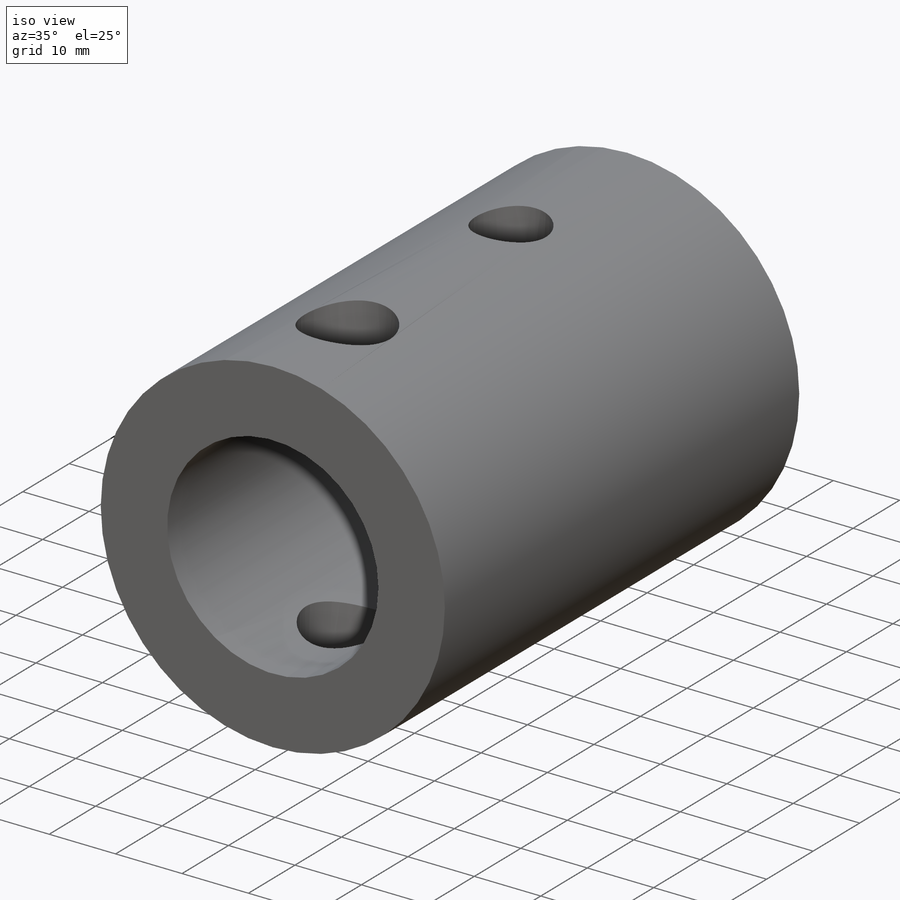
[diagram: iso view]
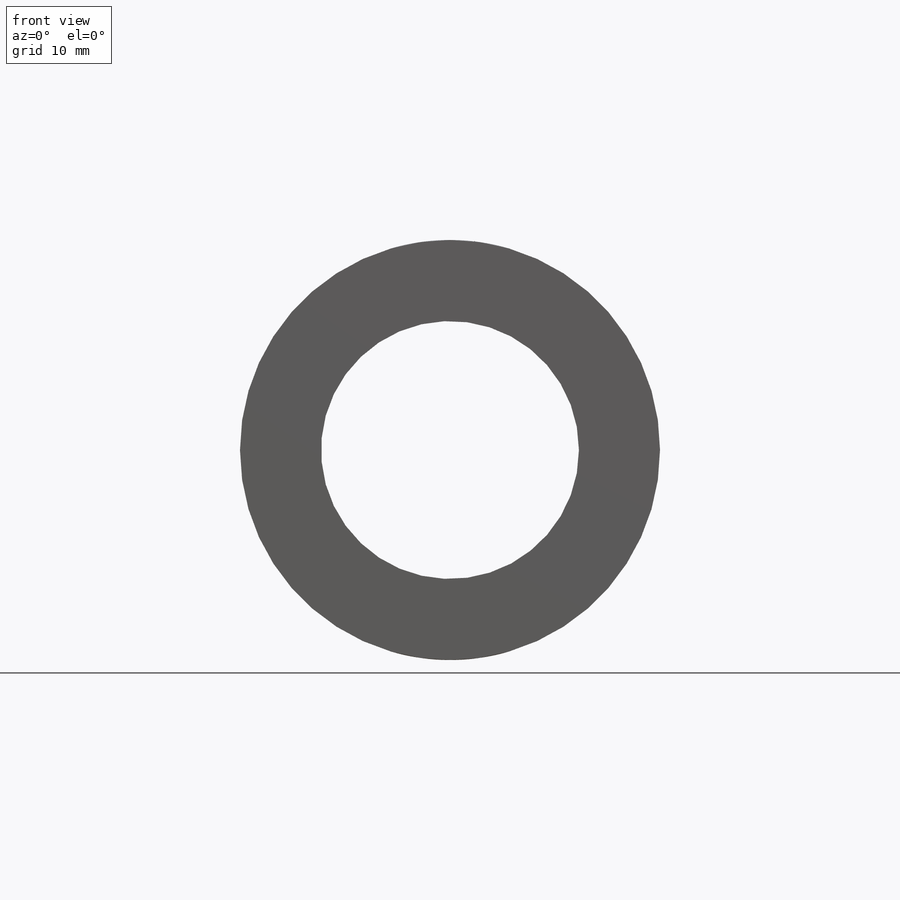
[diagram: front view]
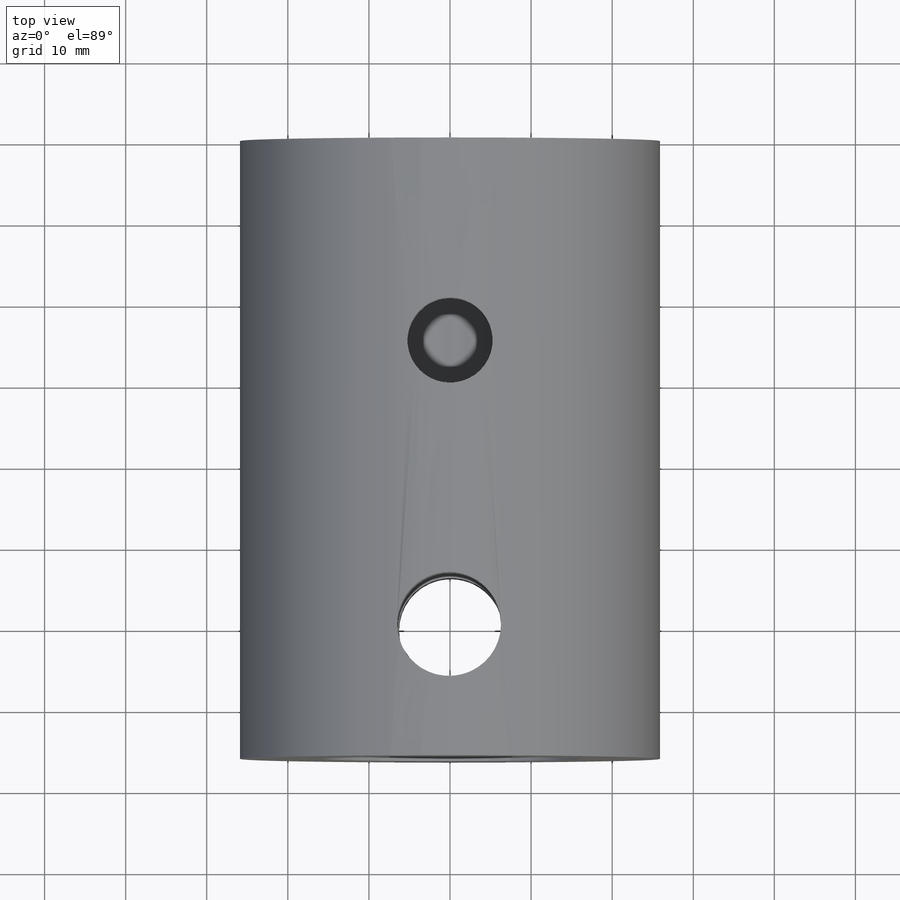
[diagram: top view]
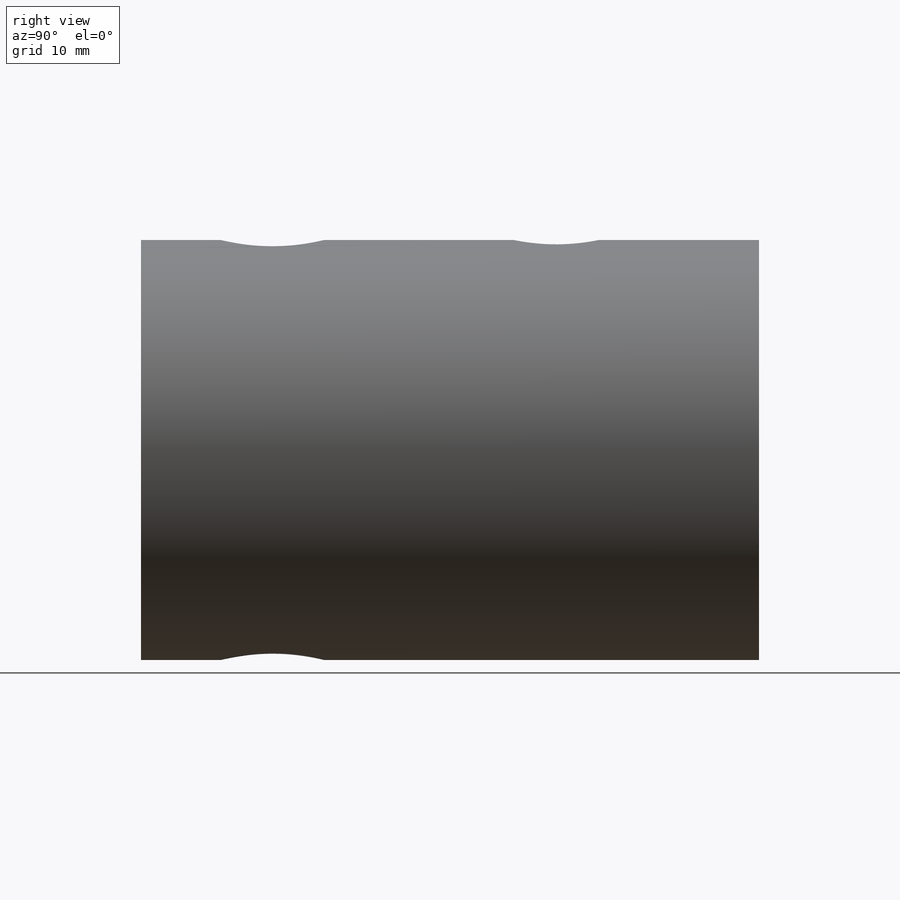
[diagram: right view]
SOLIDWORKS PART (.sldprt)
format: sldprt  version: not decoded by parser v0  size: 259,072 bytes
history: native  units: mm
features: sketch x7, cut_extrude x2, hole x2, material x1, extrude x1 (+16 scaffold rows collapsed)
feature tree (29):
  scaffold x16  (default folders/planes/origin — collapsed)
  material  "Material <not specified>"
  sketch  "Sketch1"  dims[D1=~24.524456mm]
  extrude  "Boss-Extrude1"  Depth=76.2mm
  sketch  "Sketch2"  dims[D1=~12.246471mm]
  cut_extrude  "Cut-Extrude1"  [1 undecoded]
  hole  "Ø10.5 (10.5) Diameter Hole1"  Diameter=10.5mm Depth=20mm
  sketch  "3DSketch1"  dims[D1=~30.802904mm D3=25.0mm D2=25.0mm]
  sketch  "Sketch3"  dims[hole-wizard template sketch: 46 standard entries collapsed; hole parameters kept: c15.Hole Dia.=10.5mm c15.Hole Depth=20.0mm c15.D3=~14.816244mm c15.Drill Angle=118.0deg]
  hole  "Ø12.8 (12.8) Diameter Hole1"  Diameter=12.8mm Depth=300mm
  sketch  "3DSketch2"  dims[D1=~69.630484mm D3=60.0mm D2=60.0mm]
  sketch  "Sketch4"  dims[hole-wizard template sketch: 46 standard entries collapsed; hole parameters kept: c15.Hole Dia.=12.8mm c15.Hole Depth=300.0mm c15.D3=~14.816244mm c15.Drill Angle=118.0deg]
  sketch  "Sketch5"  dims[D1=6.35mm D2=40.0mm]
  cut_extrude  "Cut-Extrude2"  Depth=35mm
decode coverage: 11 of 12 modeling features carry decoded parameters
note: ~ marks probable driven/reference dimensions
note: 1 parameter value undecoded
note: suppression state not decoded; provenance and decode notes live in map.json
